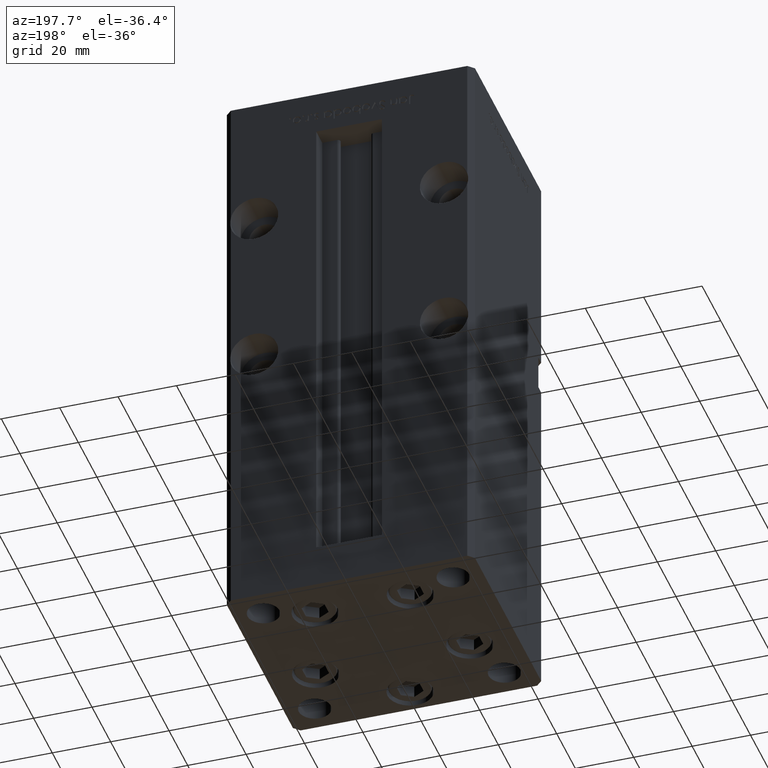
[diagram: clean part render]
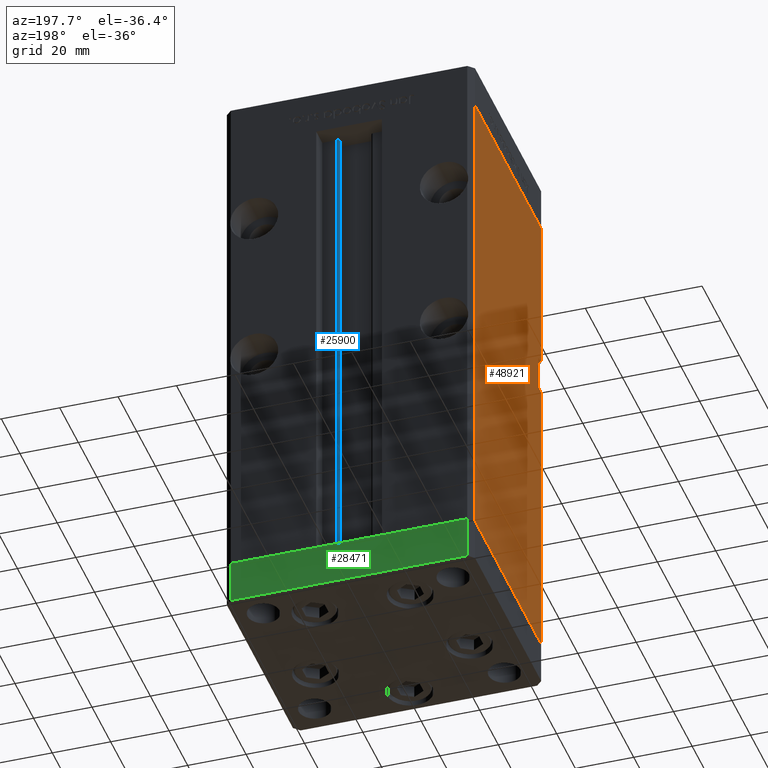
[diagram: same view with three faces highlighted in distinct colors, each labeled with its STEP entity id]
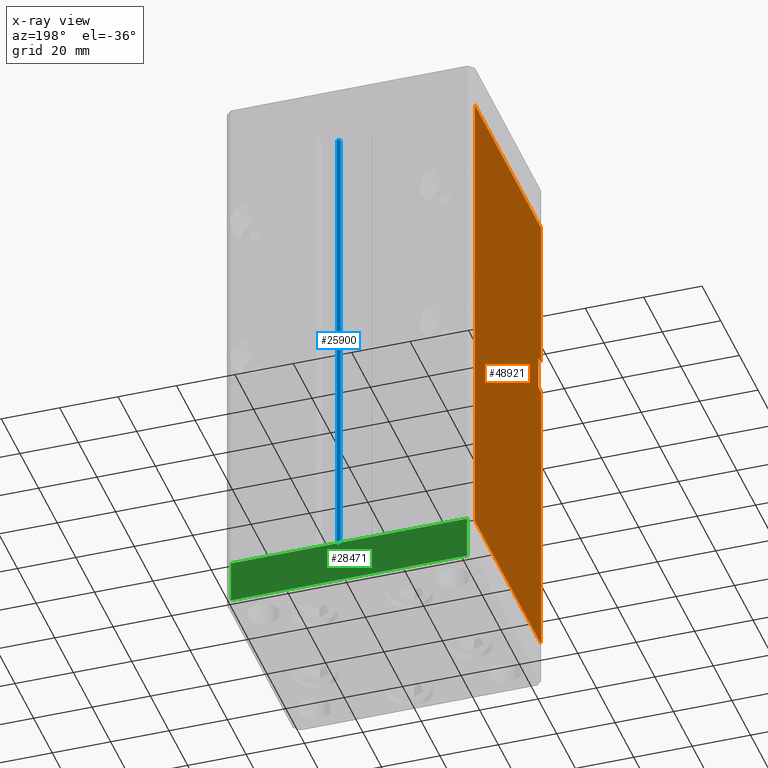
[diagram: x-ray of the same camera — body ghosted, the three highlighted faces saturated]
A machine part, auxiliary view with three faces highlighted in distinct colors.
The next image is the same camera in x-ray (body ghosted, the three faces saturated) — at least one of them is partly hidden behind the body in this view.
Their STEP definitions:

[orange] entity #48921 — the highlighted planar face has unit normal (1, 0, 0).
#392 = AXIS2_PLACEMENT_3D ( 'NONE', #2825, #52587, #19523 ) ;
#2825 = CARTESIAN_POINT ( 'NONE',  ( -42.50000000000001421, 35.50000000000000711, 168.5000000000000000 ) ) ;
#3090 = PLANE ( 'NONE',  #392 ) ;
#3484 = EDGE_CURVE ( 'NONE', #49237, #51561, #47059, .T. ) ;
#5218 = CARTESIAN_POINT ( 'NONE',  ( -42.49999999999998579, -35.50000000000000711, 0.000000000000000000 ) ) ;
#5771 = VERTEX_POINT ( 'NONE', #39479 ) ;
#6788 = ORIENTED_EDGE ( 'NONE', *, *, #36299, .T. ) ;
#7193 = DIRECTION ( 'NONE',  ( -0.000000000000000000, -0.000000000000000000, -1.000000000000000000 ) ) ;
#10213 = LINE ( 'NONE', #39987, #21284 ) ;
#10974 = CARTESIAN_POINT ( 'NONE',  ( -42.49999999999998579, -35.50000000000000711, 168.5000000000000000 ) ) ;
#11280 = EDGE_CURVE ( 'NONE', #5771, #49237, #49339, .T. ) ;
#11535 = ORIENTED_EDGE ( 'NONE', *, *, #29187, .F. ) ;
#12221 = CARTESIAN_POINT ( 'NONE',  ( -42.49999999999998579, -35.50000000000000711, 168.5000000000000000 ) ) ;
#12778 = CARTESIAN_POINT ( 'NONE',  ( -42.50000000000001421, 35.50000000000000711, 0.000000000000000000 ) ) ;
#12949 = ORIENTED_EDGE ( 'NONE', *, *, #42179, .F. ) ;
#13032 = VECTOR ( 'NONE', #28367, 1000.000000000000000 ) ;
#13363 = CARTESIAN_POINT ( 'NONE',  ( -42.50000000000001421, 35.50000000000000711, 0.000000000000000000 ) ) ;
#14058 = ORIENTED_EDGE ( 'NONE', *, *, #37844, .T. ) ;
#16163 = DIRECTION ( 'NONE',  ( 3.909236002201255146E-16, -1.000000000000000000, 0.000000000000000000 ) ) ;
#17231 = ORIENTED_EDGE ( 'NONE', *, *, #11280, .F. ) ;
#18265 = EDGE_CURVE ( 'NONE', #5771, #20715, #10213, .T. ) ;
#19523 = DIRECTION ( 'NONE',  ( -3.909236002201255639E-16, 1.000000000000000000, 0.000000000000000000 ) ) ;
#20191 = LINE ( 'NONE', #48432, #34302 ) ;
#20715 = VERTEX_POINT ( 'NONE', #28913 ) ;
#20915 = DIRECTION ( 'NONE',  ( 3.909236002201255146E-16, -1.000000000000000000, 0.000000000000000000 ) ) ;
#21110 = CARTESIAN_POINT ( 'NONE',  ( -42.49999999999998579, -35.49999999999996447, 102.0000000000000142 ) ) ;
#21284 = VECTOR ( 'NONE', #51109, 1000.000000000000000 ) ;
#22196 = EDGE_CURVE ( 'NONE', #32842, #42375, #48973, .T. ) ;
#22413 = VERTEX_POINT ( 'NONE', #12778 ) ;
#24066 = CARTESIAN_POINT ( 'NONE',  ( -42.49999999999998579, -32.50000000000000711, 114.0000000000000142 ) ) ;
#24528 = VECTOR ( 'NONE', #32666, 1000.000000000000000 ) ;
#24926 = LINE ( 'NONE', #13363, #45437 ) ;
#24928 = VECTOR ( 'NONE', #16163, 1000.000000000000000 ) ;
#26362 = CARTESIAN_POINT ( 'NONE',  ( -42.49999999999998579, -32.50000000000000711, 102.0000000000000142 ) ) ;
#28367 = DIRECTION ( 'NONE',  ( -0.000000000000000000, -0.000000000000000000, -1.000000000000000000 ) ) ;
#28913 = CARTESIAN_POINT ( 'NONE',  ( -42.49999999999998579, -35.50000000000001421, 114.0000000000000142 ) ) ;
#29187 = EDGE_CURVE ( 'NONE', #42375, #20715, #40729, .T. ) ;
#31077 = CARTESIAN_POINT ( 'NONE',  ( -42.49999999999998579, -35.50000000000000711, 168.5000000000000000 ) ) ;
#32666 = DIRECTION ( 'NONE',  ( -5.782411586589358625E-16, 0.000000000000000000, -1.000000000000000000 ) ) ;
#32842 = VERTEX_POINT ( 'NONE', #33254 ) ;
#33254 = CARTESIAN_POINT ( 'NONE',  ( -42.50000000000001421, 35.50000000000000711, 168.5000000000000000 ) ) ;
#33768 = CARTESIAN_POINT ( 'NONE',  ( -42.49999999999998579, -32.50000000000000711, 102.0000000000000142 ) ) ;
#34302 = VECTOR ( 'NONE', #36576, 1000.000000000000000 ) ;
#35223 = DIRECTION ( 'NONE',  ( -0.000000000000000000, -1.000000000000000000, -0.000000000000000000 ) ) ;
#36299 = EDGE_CURVE ( 'NONE', #22413, #52548, #24926, .T. ) ;
#36576 = DIRECTION ( 'NONE',  ( -0.000000000000000000, -0.000000000000000000, -1.000000000000000000 ) ) ;
#37678 = EDGE_LOOP ( 'NONE', ( #12949, #38736, #17231, #37703, #11535, #46992, #14058, #6788 ) ) ;
#37703 = ORIENTED_EDGE ( 'NONE', *, *, #18265, .T. ) ;
#37844 = EDGE_CURVE ( 'NONE', #32842, #22413, #20191, .T. ) ;
#38736 = ORIENTED_EDGE ( 'NONE', *, *, #3484, .F. ) ;
#39479 = CARTESIAN_POINT ( 'NONE',  ( -42.49999999999998579, -32.50000000000000711, 114.0000000000000142 ) ) ;
#39845 = VECTOR ( 'NONE', #35223, 1000.000000000000000 ) ;
#39987 = CARTESIAN_POINT ( 'NONE',  ( -42.49999999999998579, -32.50000000000000711, 114.0000000000000142 ) ) ;
#40729 = LINE ( 'NONE', #12221, #13032 ) ;
#42179 = EDGE_CURVE ( 'NONE', #51561, #52548, #48874, .T. ) ;
#42375 = VERTEX_POINT ( 'NONE', #31077 ) ;
#44513 = FACE_OUTER_BOUND ( 'NONE', #37678, .T. ) ;
#44742 = VECTOR ( 'NONE', #7193, 1000.000000000000000 ) ;
#45437 = VECTOR ( 'NONE', #20915, 1000.000000000000000 ) ;
#46992 = ORIENTED_EDGE ( 'NONE', *, *, #22196, .F. ) ;
#47059 = LINE ( 'NONE', #26362, #39845 ) ;
#48432 = CARTESIAN_POINT ( 'NONE',  ( -42.50000000000001421, 35.50000000000000711, 168.5000000000000000 ) ) ;
#48874 = LINE ( 'NONE', #10974, #44742 ) ;
#48921 = ADVANCED_FACE ( 'NONE', ( #44513 ), #3090, .F. ) ;
#48973 = LINE ( 'NONE', #50230, #24928 ) ;
#49237 = VERTEX_POINT ( 'NONE', #33768 ) ;
#49339 = LINE ( 'NONE', #24066, #24528 ) ;
#50230 = CARTESIAN_POINT ( 'NONE',  ( -42.50000000000001421, 35.50000000000000711, 168.5000000000000000 ) ) ;
#51109 = DIRECTION ( 'NONE',  ( -0.000000000000000000, -1.000000000000000000, -0.000000000000000000 ) ) ;
#51561 = VERTEX_POINT ( 'NONE', #21110 ) ;
#52548 = VERTEX_POINT ( 'NONE', #5218 ) ;
#52587 = DIRECTION ( 'NONE',  ( 1.000000000000000000, 3.909236002201255639E-16, -0.000000000000000000 ) ) ;

[blue] entity #25900 — the highlighted cylindrical surface (edge-blend (fillet) strip) has radius 0.9333 mm, axis along (0, 0, 1).
#3295 = DIRECTION ( 'NONE',  ( 0.000000000000000000, 0.000000000000000000, -1.000000000000000000 ) ) ;
#3436 = DIRECTION ( 'NONE',  ( 1.000000000000000000, 0.000000000000000000, 0.000000000000000000 ) ) ;
#4185 = CARTESIAN_POINT ( 'NONE',  ( 6.183333333333997928, 31.00000000000000000, 0.000000000000000000 ) ) ;
#5475 = CARTESIAN_POINT ( 'NONE',  ( 5.375042956467947164, 29.59999999999899245, 0.000000000000000000 ) ) ;
#6383 = CARTESIAN_POINT ( 'NONE',  ( 6.183333333333997928, 31.00000000000000000, 0.000000000000000000 ) ) ;
#6704 = ORIENTED_EDGE ( 'NONE', *, *, #19780, .T. ) ;
#8813 = VERTEX_POINT ( 'NONE', #34795 ) ;
#10460 = FACE_OUTER_BOUND ( 'NONE', #28226, .T. ) ;
#11912 = DIRECTION ( 'NONE',  ( 1.000000000000000000, 0.000000000000000000, 0.000000000000000000 ) ) ;
#13335 = ORIENTED_EDGE ( 'NONE', *, *, #18075, .F. ) ;
#18075 = EDGE_CURVE ( 'NONE', #19433, #32797, #53038, .T. ) ;
#19433 = VERTEX_POINT ( 'NONE', #37879 ) ;
#19780 = EDGE_CURVE ( 'NONE', #19433, #48219, #42865, .T. ) ;
#20176 = CARTESIAN_POINT ( 'NONE',  ( 5.375042956467944499, 29.59999999999899600, 168.5000000000000000 ) ) ;
#20424 = AXIS2_PLACEMENT_3D ( 'NONE', #28542, #36861, #44942 ) ;
#21755 = ORIENTED_EDGE ( 'NONE', *, *, #43560, .T. ) ;
#22842 = CARTESIAN_POINT ( 'NONE',  ( 6.183333333333997928, 30.06666666666599852, 0.000000000000000000 ) ) ;
#23073 = DIRECTION ( 'NONE',  ( -0.000000000000000000, -0.000000000000000000, 1.000000000000000000 ) ) ;
#25100 = AXIS2_PLACEMENT_3D ( 'NONE', #44455, #3295, #11912 ) ;
#25900 = ADVANCED_FACE ( 'NONE', ( #10460 ), #43279, .T. ) ;
#28226 = EDGE_LOOP ( 'NONE', ( #48665, #13335, #6704, #21755 ) ) ;
#28542 = CARTESIAN_POINT ( 'NONE',  ( 6.183333333333997928, 30.06666666666599852, 0.000000000000000000 ) ) ;
#28711 = DIRECTION ( 'NONE',  ( -0.000000000000000000, -0.000000000000000000, 1.000000000000000000 ) ) ;
#32797 = VERTEX_POINT ( 'NONE', #4185 ) ;
#32867 = CIRCLE ( 'NONE', #25100, 0.9333333333340008142 ) ;
#33735 = DIRECTION ( 'NONE',  ( -0.000000000000000000, -0.000000000000000000, 1.000000000000000000 ) ) ;
#34795 = CARTESIAN_POINT ( 'NONE',  ( 6.183333333333997928, 31.00000000000000000, 168.5000000000000000 ) ) ;
#35054 = VECTOR ( 'NONE', #33735, 1000.000000000000000 ) ;
#36861 = DIRECTION ( 'NONE',  ( -0.000000000000000000, -0.000000000000000000, -1.000000000000000000 ) ) ;
#37879 = CARTESIAN_POINT ( 'NONE',  ( 5.375042956467947164, 29.59999999999899245, 0.000000000000000000 ) ) ;
#42865 = LINE ( 'NONE', #5475, #35054 ) ;
#43279 = CYLINDRICAL_SURFACE ( 'NONE', #43812, 0.9333333333340008142 ) ;
#43510 = LINE ( 'NONE', #6383, #44332 ) ;
#43560 = EDGE_CURVE ( 'NONE', #48219, #8813, #32867, .T. ) ;
#43812 = AXIS2_PLACEMENT_3D ( 'NONE', #22842, #28711, #3436 ) ;
#44332 = VECTOR ( 'NONE', #23073, 1000.000000000000000 ) ;
#44455 = CARTESIAN_POINT ( 'NONE',  ( 6.183333333333997928, 30.06666666666599852, 168.5000000000000000 ) ) ;
#44942 = DIRECTION ( 'NONE',  ( 1.000000000000000000, 0.000000000000000000, 0.000000000000000000 ) ) ;
#48219 = VERTEX_POINT ( 'NONE', #20176 ) ;
#48665 = ORIENTED_EDGE ( 'NONE', *, *, #50409, .F. ) ;
#50409 = EDGE_CURVE ( 'NONE', #32797, #8813, #43510, .T. ) ;
#53038 = CIRCLE ( 'NONE', #20424, 0.9333333333340008142 ) ;

[green] entity #28471 — the highlighted planar face has unit normal (-0, 1, 0).
#24 = CARTESIAN_POINT ( 'NONE',  ( 40.49999999999991473, 37.50000000000000711, -15.00000000000000000 ) ) ;
#46 = EDGE_CURVE ( 'NONE', #34958, #44750, #47278, .T. ) ;
#823 = VECTOR ( 'NONE', #9858, 1000.000000000000000 ) ;
#1943 = FACE_OUTER_BOUND ( 'NONE', #46277, .T. ) ;
#6636 = ORIENTED_EDGE ( 'NONE', *, *, #7693, .F. ) ;
#7693 = EDGE_CURVE ( 'NONE', #43454, #44750, #35882, .T. ) ;
#9858 = DIRECTION ( 'NONE',  ( -1.000000000000000000, -3.426614273534436165E-16, 0.000000000000000000 ) ) ;
#11551 = LINE ( 'NONE', #35766, #22346 ) ;
#14348 = DIRECTION ( 'NONE',  ( -3.426614273534436165E-16, 1.000000000000000000, 0.000000000000000000 ) ) ;
#15850 = VERTEX_POINT ( 'NONE', #24 ) ;
#18525 = VECTOR ( 'NONE', #43691, 1000.000000000000000 ) ;
#19136 = VECTOR ( 'NONE', #51588, 1000.000000000000000 ) ;
#19758 = CARTESIAN_POINT ( 'NONE',  ( 40.49999999999991473, 37.50000000000000711, 0.000000000000000000 ) ) ;
#19932 = CARTESIAN_POINT ( 'NONE',  ( -40.50000000000000711, 37.49999999999997868, 0.000000000000000000 ) ) ;
#21883 = CARTESIAN_POINT ( 'NONE',  ( 40.49999999999991473, 37.50000000000000711, -15.00000000000000000 ) ) ;
#22346 = VECTOR ( 'NONE', #52167, 1000.000000000000000 ) ;
#25422 = EDGE_CURVE ( 'NONE', #15850, #34958, #50475, .T. ) ;
#28471 = ADVANCED_FACE ( 'NONE', ( #1943 ), #29935, .T. ) ;
#29717 = CARTESIAN_POINT ( 'NONE',  ( -40.50000000000000711, 37.49999999999997868, -15.00000000000000000 ) ) ;
#29935 = PLANE ( 'NONE',  #37017 ) ;
#30498 = CARTESIAN_POINT ( 'NONE',  ( 40.49999999999991473, 37.50000000000000711, 0.000000000000000000 ) ) ;
#34606 = CARTESIAN_POINT ( 'NONE',  ( 40.49999999999991473, 37.50000000000000711, -15.00000000000000000 ) ) ;
#34958 = VERTEX_POINT ( 'NONE', #29717 ) ;
#35766 = CARTESIAN_POINT ( 'NONE',  ( 40.49999999999991473, 37.50000000000000711, -15.00000000000000000 ) ) ;
#35882 = LINE ( 'NONE', #19758, #18525 ) ;
#36934 = ORIENTED_EDGE ( 'NONE', *, *, #39269, .F. ) ;
#37017 = AXIS2_PLACEMENT_3D ( 'NONE', #21883, #14348, #47135 ) ;
#38941 = CARTESIAN_POINT ( 'NONE',  ( -40.50000000000000711, 37.49999999999997868, -15.00000000000000000 ) ) ;
#39269 = EDGE_CURVE ( 'NONE', #15850, #43454, #11551, .T. ) ;
#40703 = ORIENTED_EDGE ( 'NONE', *, *, #46, .T. ) ;
#43454 = VERTEX_POINT ( 'NONE', #30498 ) ;
#43691 = DIRECTION ( 'NONE',  ( -1.000000000000000000, -3.426614273534436165E-16, 0.000000000000000000 ) ) ;
#44750 = VERTEX_POINT ( 'NONE', #19932 ) ;
#46277 = EDGE_LOOP ( 'NONE', ( #6636, #36934, #52482, #40703 ) ) ;
#47135 = DIRECTION ( 'NONE',  ( -1.000000000000000000, -3.426614273534436165E-16, 0.000000000000000000 ) ) ;
#47278 = LINE ( 'NONE', #38941, #19136 ) ;
#50475 = LINE ( 'NONE', #34606, #823 ) ;
#51588 = DIRECTION ( 'NONE',  ( 0.000000000000000000, 0.000000000000000000, 1.000000000000000000 ) ) ;
#52167 = DIRECTION ( 'NONE',  ( 0.000000000000000000, 0.000000000000000000, 1.000000000000000000 ) ) ;
#52482 = ORIENTED_EDGE ( 'NONE', *, *, #25422, .T. ) ;